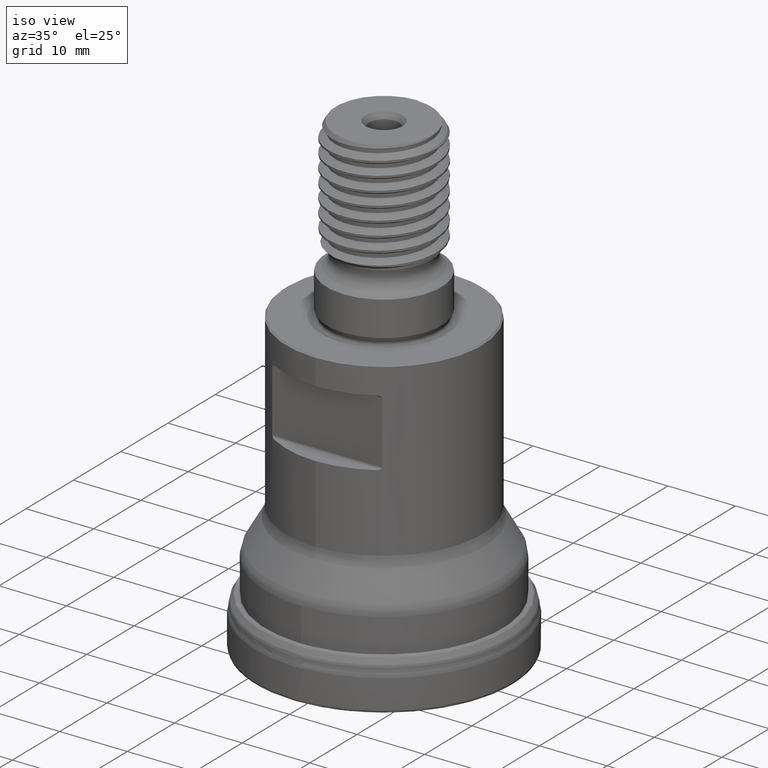
[diagram: clean part render]
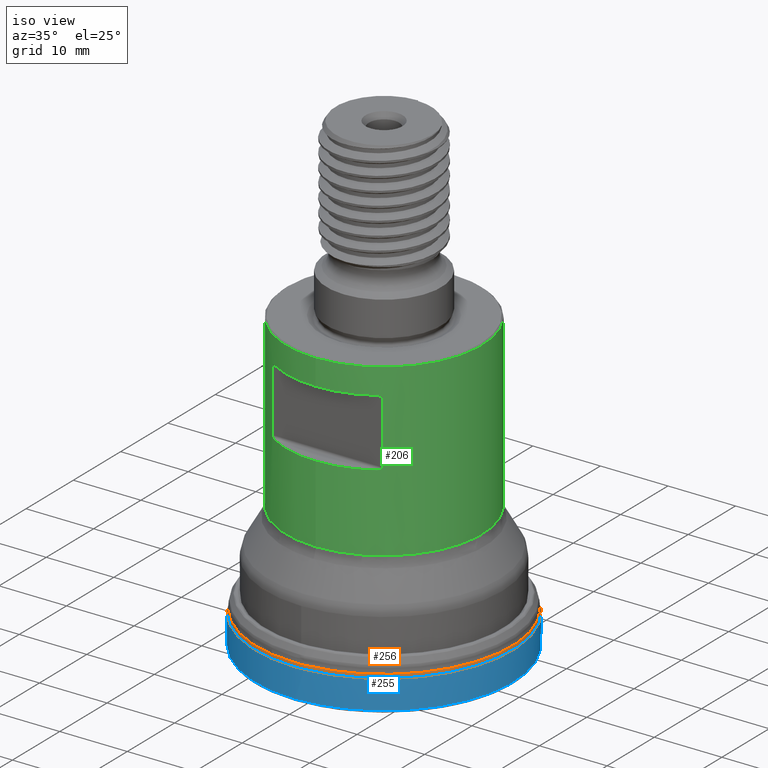
[diagram: same view with three faces highlighted in distinct colors, each labeled with its STEP entity id]
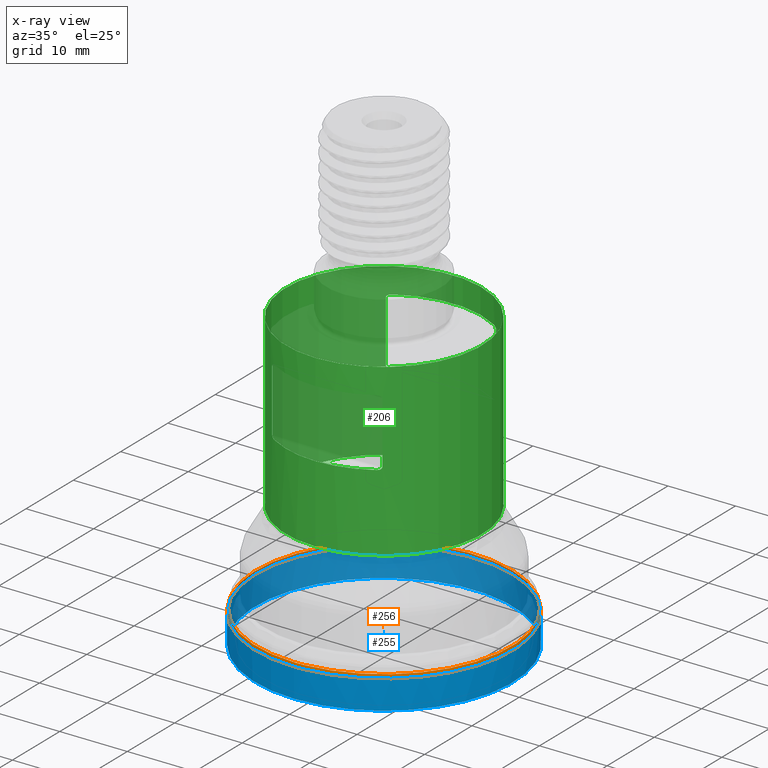
[diagram: x-ray of the same camera — body ghosted, the three highlighted faces saturated]
A machine part, iso view with three faces highlighted in distinct colors.
The next image is the same camera in x-ray (body ghosted, the three faces saturated) — at least one of them is partly hidden behind the body in this view.
Their STEP definitions:

[orange] entity #256 — the highlighted face is a SurfaceOfRevolution surface.
#112=SURFACE_OF_REVOLUTION('',#1006,#133);
#133=AXIS1_PLACEMENT('',#3627,#1317);
#256=ADVANCED_FACE('',(#394,#395),#112,.F.);
#394=FACE_BOUND('',#511,.T.);
#395=FACE_BOUND('',#512,.T.);
#511=EDGE_LOOP('',(#697));
#512=EDGE_LOOP('',(#698));
#697=ORIENTED_EDGE('',*,*,#887,.T.);
#698=ORIENTED_EDGE('',*,*,#888,.F.);
#794=VERTEX_POINT('',#3606);
#795=VERTEX_POINT('',#3621);
#887=EDGE_CURVE('',#794,#794,#945,.T.);
#888=EDGE_CURVE('',#795,#795,#946,.T.);
#945=CIRCLE('',#1104,19.0499998175295);
#946=CIRCLE('',#1105,18.9513466243375);
#1006=B_SPLINE_CURVE_WITH_KNOTS('',3,(#3622,#3623,#3624,#3625,#3626),
 .UNSPECIFIED.,.F.,.F.,(4,1,4),(0.,0.5,1.),.UNSPECIFIED.);
#1104=AXIS2_PLACEMENT_3D('',#3605,#1312,#1313);
#1105=AXIS2_PLACEMENT_3D('',#3620,#1315,#1316);
#1312=DIRECTION('',(0.,1.17145536458252E-15,1.));
#1313=DIRECTION('',(0.,-1.,1.18380080859356E-15));
#1315=DIRECTION('',(0.,1.17145536458252E-15,1.));
#1316=DIRECTION('',(0.,-1.,1.18996320603085E-15));
#1317=DIRECTION('',(0.,1.17145536458252E-15,1.));
#3605=CARTESIAN_POINT('',(0.,5.51126194071299E-15,4.704628197829));
#3606=CARTESIAN_POINT('',(0.,-19.0499998175295,4.70462819782902));
#3620=CARTESIAN_POINT('',(0.,6.11700145280095E-15,5.22171107644455));
#3621=CARTESIAN_POINT('',(0.,-18.9513466243375,5.22171107644457));
#3622=CARTESIAN_POINT('',(18.8659764767235,-1.79679372346596,5.22171119131758));
#3623=CARTESIAN_POINT('',(18.8944517323654,-1.78229448135056,5.14062336767116));
#3624=CARTESIAN_POINT('',(18.9439352439444,-1.76862433720116,4.96701630085083));
#3625=CARTESIAN_POINT('',(18.9629370148122,-1.79322453442999,4.78867733303717));
#3626=CARTESIAN_POINT('',(18.9632891112451,-1.81553274032853,4.704628197829));
#3627=CARTESIAN_POINT('',(0.,0.,0.));

[blue] entity #255 — the highlighted face is a SurfaceOfRevolution surface.
#111=SURFACE_OF_REVOLUTION('',#1005,#132);
#132=AXIS1_PLACEMENT('',#3619,#1314);
#255=ADVANCED_FACE('',(#392,#393),#111,.F.);
#392=FACE_BOUND('',#509,.T.);
#393=FACE_BOUND('',#510,.T.);
#509=EDGE_LOOP('',(#695));
#510=EDGE_LOOP('',(#696));
#695=ORIENTED_EDGE('',*,*,#886,.T.);
#696=ORIENTED_EDGE('',*,*,#887,.F.);
#793=VERTEX_POINT('',#3592);
#794=VERTEX_POINT('',#3606);
#886=EDGE_CURVE('',#793,#793,#944,.T.);
#887=EDGE_CURVE('',#794,#794,#945,.T.);
#944=CIRCLE('',#1103,19.0499999619467);
#945=CIRCLE('',#1104,19.0499998175295);
#1005=B_SPLINE_CURVE_WITH_KNOTS('',3,(#3607,#3608,#3609,#3610,#3611,#3612,
#3613,#3614,#3615,#3616,#3617,#3618),.UNSPECIFIED.,.F.,.F.,(4,1,1,1,1,1,
1,1,1,4),(0.,0.221418157861957,0.365983083750147,0.510548009638337,0.655112935526528,
0.799677861414718,0.871960324358813,0.90810155583086,0.944242787302908,
1.),.UNSPECIFIED.);
#1103=AXIS2_PLACEMENT_3D('',#3591,#1309,#1310);
#1104=AXIS2_PLACEMENT_3D('',#3605,#1312,#1313);
#1309=DIRECTION('',(0.,1.17145536458252E-15,1.));
#1310=DIRECTION('',(0.,-1.,1.17241809962287E-15));
#1312=DIRECTION('',(0.,1.17145536458252E-15,1.));
#1313=DIRECTION('',(0.,-1.,1.18380080859356E-15));
#1314=DIRECTION('',(0.,1.17145536458252E-15,1.));
#3591=CARTESIAN_POINT('',(0.,4.56857322947219E-16,0.389991233776142));
#3592=CARTESIAN_POINT('',(0.,-19.0499999619467,0.389991233776164));
#3605=CARTESIAN_POINT('',(0.,5.51126194071299E-15,4.704628197829));
#3606=CARTESIAN_POINT('',(0.,-19.0499998175295,4.70462819782902));
#3607=CARTESIAN_POINT('',(18.9632892823778,-1.8155328674677,4.70462793984546));
#3608=CARTESIAN_POINT('',(18.9647607216455,-1.90081503841667,4.38634500719714));
#3609=CARTESIAN_POINT('',(18.9634116688144,-2.04178510973329,3.86023664262779));
#3610=CARTESIAN_POINT('',(18.9491169293843,-2.23840300863843,3.12647451226594));
#3611=CARTESIAN_POINT('',(18.9282331894436,-2.4053713161252,2.50338136065094));
#3612=CARTESIAN_POINT('',(18.8997213493052,-2.57226956850283,1.88056631840897));
#3613=CARTESIAN_POINT('',(18.8724765765966,-2.71122892258865,1.36169080098696));
#3614=CARTESIAN_POINT('',(18.8522347613065,-2.80874868595928,0.998603279412066));
#3615=CARTESIAN_POINT('',(18.8403728344468,-2.86397847753352,0.791031930908569));
#3616=CARTESIAN_POINT('',(18.8293522138123,-2.9145375778137,0.607455353660356));
#3617=CARTESIAN_POINT('',(18.8239958413989,-2.9344856546909,0.472213763827121));
#3618=CARTESIAN_POINT('',(18.8208758810147,-2.94569679729784,0.389991233776145));
#3619=CARTESIAN_POINT('',(0.,0.,0.));

[green] entity #206 — the highlighted cylindrical surface (bore or boss wall) has radius 14.5 mm, axis along (0, 0, 1).
#206=ADVANCED_FACE('',(#326,#327,#328,#329),#273,.T.);
#273=CYLINDRICAL_SURFACE('',#1025,14.5);
#284=LINE('',#1574,#305);
#285=LINE('',#1622,#306);
#286=LINE('',#1668,#307);
#287=LINE('',#1716,#308);
#305=VECTOR('',#1125,1.);
#306=VECTOR('',#1128,1.);
#307=VECTOR('',#1131,1.);
#308=VECTOR('',#1134,1.);
#326=FACE_BOUND('',#428,.T.);
#327=FACE_BOUND('',#429,.T.);
#328=FACE_BOUND('',#430,.T.);
#329=FACE_BOUND('',#431,.T.);
#428=EDGE_LOOP('',(#545));
#429=EDGE_LOOP('',(#546,#547,#548,#549,#550,#551,#552,#553));
#430=EDGE_LOOP('',(#554,#555,#556,#557,#558,#559,#560,#561));
#431=EDGE_LOOP('',(#562));
#545=ORIENTED_EDGE('',*,*,#811,.T.);
#546=ORIENTED_EDGE('',*,*,#812,.T.);
#547=ORIENTED_EDGE('',*,*,#813,.T.);
#548=ORIENTED_EDGE('',*,*,#814,.T.);
#549=ORIENTED_EDGE('',*,*,#815,.T.);
#550=ORIENTED_EDGE('',*,*,#816,.T.);
#551=ORIENTED_EDGE('',*,*,#817,.T.);
#552=ORIENTED_EDGE('',*,*,#818,.T.);
#553=ORIENTED_EDGE('',*,*,#819,.T.);
#554=ORIENTED_EDGE('',*,*,#820,.T.);
#555=ORIENTED_EDGE('',*,*,#821,.T.);
#556=ORIENTED_EDGE('',*,*,#822,.T.);
#557=ORIENTED_EDGE('',*,*,#823,.T.);
#558=ORIENTED_EDGE('',*,*,#824,.T.);
#559=ORIENTED_EDGE('',*,*,#825,.T.);
#560=ORIENTED_EDGE('',*,*,#826,.T.);
#561=ORIENTED_EDGE('',*,*,#827,.T.);
#562=ORIENTED_EDGE('',*,*,#828,.T.);
#731=VERTEX_POINT('',#1573);
#732=VERTEX_POINT('',#1575);
#733=VERTEX_POINT('',#1576);
#734=VERTEX_POINT('',#1596);
#735=VERTEX_POINT('',#1598);
#736=VERTEX_POINT('',#1621);
#737=VERTEX_POINT('',#1623);
#738=VERTEX_POINT('',#1643);
#739=VERTEX_POINT('',#1645);
#740=VERTEX_POINT('',#1669);
#741=VERTEX_POINT('',#1670);
#742=VERTEX_POINT('',#1690);
#743=VERTEX_POINT('',#1692);
#744=VERTEX_POINT('',#1715);
#745=VERTEX_POINT('',#1717);
#746=VERTEX_POINT('',#1734);
#747=VERTEX_POINT('',#1736);
#748=VERTEX_POINT('',#1757);
#811=EDGE_CURVE('',#731,#731,#904,.T.);
#812=EDGE_CURVE('',#732,#733,#284,.T.);
#813=EDGE_CURVE('',#733,#734,#983,.T.);
#814=EDGE_CURVE('',#734,#735,#905,.T.);
#815=EDGE_CURVE('',#735,#736,#984,.T.);
#816=EDGE_CURVE('',#736,#737,#285,.T.);
#817=EDGE_CURVE('',#737,#738,#985,.T.);
#818=EDGE_CURVE('',#738,#739,#906,.T.);
#819=EDGE_CURVE('',#739,#732,#986,.T.);
#820=EDGE_CURVE('',#740,#741,#286,.T.);
#821=EDGE_CURVE('',#741,#742,#987,.T.);
#822=EDGE_CURVE('',#742,#743,#907,.T.);
#823=EDGE_CURVE('',#743,#744,#988,.T.);
#824=EDGE_CURVE('',#744,#745,#287,.T.);
#825=EDGE_CURVE('',#745,#746,#989,.T.);
#826=EDGE_CURVE('',#746,#747,#908,.T.);
#827=EDGE_CURVE('',#747,#740,#990,.T.);
#828=EDGE_CURVE('',#748,#748,#909,.T.);
#904=CIRCLE('',#1019,14.5);
#905=CIRCLE('',#1020,14.5);
#906=CIRCLE('',#1021,14.5);
#907=CIRCLE('',#1022,14.5);
#908=CIRCLE('',#1023,14.5);
#909=CIRCLE('',#1024,14.5);
#983=B_SPLINE_CURVE_WITH_KNOTS('',3,(#1577,#1578,#1579,#1580,#1581,#1582,
#1583,#1584,#1585,#1586,#1587,#1588,#1589,#1590,#1591,#1592,#1593,#1594,
#1595),.UNSPECIFIED.,.F.,.F.,(4,3,3,3,3,3,4),(0.,0.0742178285587751,0.157644329655402,
0.29286535483133,0.514948150457342,0.906958131603487,1.),.UNSPECIFIED.);
#984=B_SPLINE_CURVE_WITH_KNOTS('',3,(#1599,#1600,#1601,#1602,#1603,#1604,
#1605,#1606,#1607,#1608,#1609,#1610,#1611,#1612,#1613,#1614,#1615,#1616,
#1617,#1618,#1619,#1620),.UNSPECIFIED.,.F.,.F.,(4,3,3,3,3,3,3,4),(0.,0.0434556033441521,
0.448616497701335,0.640684900707791,0.801051445389477,0.902022694086625,
0.988047551290973,1.),.UNSPECIFIED.);
#985=B_SPLINE_CURVE_WITH_KNOTS('',3,(#1624,#1625,#1626,#1627,#1628,#1629,
#1630,#1631,#1632,#1633,#1634,#1635,#1636,#1637,#1638,#1639,#1640,#1641,
#1642),.UNSPECIFIED.,.F.,.F.,(4,3,3,3,3,3,4),(0.,0.074217828558773,0.157644329655401,
0.292865354831329,0.514948150457346,0.906958131603496,1.),.UNSPECIFIED.);
#986=B_SPLINE_CURVE_WITH_KNOTS('',3,(#1646,#1647,#1648,#1649,#1650,#1651,
#1652,#1653,#1654,#1655,#1656,#1657,#1658,#1659,#1660,#1661,#1662,#1663,
#1664,#1665,#1666,#1667),.UNSPECIFIED.,.F.,.F.,(4,3,3,3,3,3,3,4),(0.,0.0434556033441253,
0.448616497701322,0.640684900707777,0.801051445389463,0.902022694086611,
0.988047551290965,1.),.UNSPECIFIED.);
#987=B_SPLINE_CURVE_WITH_KNOTS('',3,(#1671,#1672,#1673,#1674,#1675,#1676,
#1677,#1678,#1679,#1680,#1681,#1682,#1683,#1684,#1685,#1686,#1687,#1688,
#1689),.UNSPECIFIED.,.F.,.F.,(4,3,3,3,3,3,4),(0.,0.074217828558774,0.1576443296554,
0.29286535483133,0.514948150457343,0.906958131603487,1.),.UNSPECIFIED.);
#988=B_SPLINE_CURVE_WITH_KNOTS('',3,(#1693,#1694,#1695,#1696,#1697,#1698,
#1699,#1700,#1701,#1702,#1703,#1704,#1705,#1706,#1707,#1708,#1709,#1710,
#1711,#1712,#1713,#1714),.UNSPECIFIED.,.F.,.F.,(4,3,3,3,3,3,3,4),(0.,0.043455603344152,
0.448616497701335,0.640684900707791,0.801051445389477,0.902022694086623,
0.988047551290973,1.),.UNSPECIFIED.);
#989=B_SPLINE_CURVE_WITH_KNOTS('',3,(#1718,#1719,#1720,#1721,#1722,#1723,
#1724,#1725,#1726,#1727,#1728,#1729,#1730,#1731,#1732,#1733),
 .UNSPECIFIED.,.F.,.F.,(4,3,3,3,3,4),(0.,0.102583735862563,0.203723937083867,
0.364923242271843,0.641759227713241,1.),.UNSPECIFIED.);
#990=B_SPLINE_CURVE_WITH_KNOTS('',3,(#1737,#1738,#1739,#1740,#1741,#1742,
#1743,#1744,#1745,#1746,#1747,#1748,#1749,#1750,#1751,#1752,#1753,#1754,
#1755),.UNSPECIFIED.,.F.,.F.,(4,3,3,3,3,3,4),(0.,0.444864729300737,0.609407154865654,
0.77554656197924,0.88000660205286,0.969095596706916,1.),.UNSPECIFIED.);
#1019=AXIS2_PLACEMENT_3D('',#1572,#1123,#1124);
#1020=AXIS2_PLACEMENT_3D('',#1597,#1126,#1127);
#1021=AXIS2_PLACEMENT_3D('',#1644,#1129,#1130);
#1022=AXIS2_PLACEMENT_3D('',#1691,#1132,#1133);
#1023=AXIS2_PLACEMENT_3D('',#1735,#1135,#1136);
#1024=AXIS2_PLACEMENT_3D('',#1756,#1137,#1138);
#1025=AXIS2_PLACEMENT_3D('',#1758,#1139,#1140);
#1123=DIRECTION('',(0.,1.17145536458252E-15,1.));
#1124=DIRECTION('',(0.,-1.,1.19636101791504E-15));
#1125=DIRECTION('',(1.17145536458252E-15,1.17145536458252E-15,1.));
#1126=DIRECTION('',(1.17145536458252E-15,1.17145536458252E-15,1.));
#1127=DIRECTION('',(0.,1.,-9.57088814332031E-16));
#1128=DIRECTION('',(-1.17145536458252E-15,-1.17145536458252E-15,-1.));
#1129=DIRECTION('',(-1.17145536458252E-15,-1.17145536458252E-15,-1.));
#1130=DIRECTION('',(0.,-1.,1.19636101791504E-15));
#1131=DIRECTION('',(1.17145536458252E-15,1.17145536458252E-15,1.));
#1132=DIRECTION('',(1.17145536458252E-15,1.17145536458252E-15,1.));
#1133=DIRECTION('',(0.,1.,-9.57088814332031E-16));
#1134=DIRECTION('',(-1.17145536458252E-15,-1.17145536458252E-15,-1.));
#1135=DIRECTION('',(-1.17145536458252E-15,-1.17145536458252E-15,-1.));
#1136=DIRECTION('',(0.,-1.,1.19636101791504E-15));
#1137=DIRECTION('',(-1.17145536458252E-15,-1.17145536458252E-15,-1.));
#1138=DIRECTION('',(0.,-1.,9.57088814332031E-16));
#1139=DIRECTION('',(0.,1.17145536458252E-15,1.));
#1140=DIRECTION('',(0.,-1.,1.17145536458252E-15));
#1572=CARTESIAN_POINT('',(0.,2.2257651927068E-14,19.));
#1573=CARTESIAN_POINT('',(0.,-14.5,19.));
#1574=CARTESIAN_POINT('',(8.13941029804988,12.,2.44999999999997));
#1575=CARTESIAN_POINT('',(8.1394102980499,12.,30.85));
#1576=CARTESIAN_POINT('',(8.13941029804991,12.,40.05));
#1577=CARTESIAN_POINT('',(8.13941029804991,12.,40.05));
#1578=CARTESIAN_POINT('',(8.13941029804991,12.,40.072761926607));
#1579=CARTESIAN_POINT('',(8.13644717399722,12.0020111473464,40.0957458142993));
#1580=CARTESIAN_POINT('',(8.13094272666901,12.0057390599509,40.1175152660629));
#1581=CARTESIAN_POINT('',(8.12473370927236,12.0099441459176,40.1420712108574));
#1582=CARTESIAN_POINT('',(8.11521283115816,12.0163853844229,40.1656009685708));
#1583=CARTESIAN_POINT('',(8.10357359360389,12.0242294976871,40.1871004361461));
#1584=CARTESIAN_POINT('',(8.08481372002567,12.0368724712911,40.2217528170973));
#1585=CARTESIAN_POINT('',(8.06019025602631,12.0533969675641,40.2521246156905));
#1586=CARTESIAN_POINT('',(8.03327292365512,12.0713100421649,40.2779537488578));
#1587=CARTESIAN_POINT('',(7.98921241932374,12.1006316365247,40.3202329991973));
#1588=CARTESIAN_POINT('',(7.9377537596222,12.1344988197545,40.3521308710705));
#1589=CARTESIAN_POINT('',(7.88470021137721,12.1688743348229,40.3764673443032));
#1590=CARTESIAN_POINT('',(7.79146837798988,12.229282967223,40.4192342108507));
#1591=CARTESIAN_POINT('',(7.68997559746779,12.29342903711,40.4405879810863));
#1592=CARTESIAN_POINT('',(7.58871335673044,12.355623399464,40.4475307753179));
#1593=CARTESIAN_POINT('',(7.56454450820136,12.3704676900125,40.449187852437));
#1594=CARTESIAN_POINT('',(7.54027998321402,12.3852729080489,40.45));
#1595=CARTESIAN_POINT('',(7.51598296964548,12.4,40.45));
#1596=CARTESIAN_POINT('',(7.51598296964548,12.4,40.45));
#1597=CARTESIAN_POINT('',(4.73853694973631E-14,4.73853694973631E-14,40.45));
#1598=CARTESIAN_POINT('',(-7.51598296964539,12.4,40.45));
#1599=CARTESIAN_POINT('',(-7.51598296964539,12.4,40.45));
#1600=CARTESIAN_POINT('',(-7.52735702976874,12.3931058675659,40.45));
#1601=CARTESIAN_POINT('',(-7.53872266574222,12.3861954343654,40.4498218218392));
#1602=CARTESIAN_POINT('',(-7.55007357119268,12.3792725581748,40.4494626054531));
#1603=CARTESIAN_POINT('',(-7.65506953109511,12.3152359018837,40.4461398512082));
#1604=CARTESIAN_POINT('',(-7.76056873589891,12.2489637151653,40.4278378023694));
#1605=CARTESIAN_POINT('',(-7.85835688142064,12.1859028030027,40.3878792539324));
#1606=CARTESIAN_POINT('',(-7.90506882074649,12.1557795453516,40.3687916510315));
#1607=CARTESIAN_POINT('',(-7.95057338698894,12.1260402451167,40.344415908192));
#1608=CARTESIAN_POINT('',(-7.99203515515349,12.0986517463224,40.3130384572747));
#1609=CARTESIAN_POINT('',(-8.02656173154824,12.0758444436478,40.2869094231277));
#1610=CARTESIAN_POINT('',(-8.05898187926331,12.0542019493076,40.2552992987112));
#1611=CARTESIAN_POINT('',(-8.08488342447345,12.0368043937199,40.2175975882249));
#1612=CARTESIAN_POINT('',(-8.10126088959277,12.0258039743439,40.1937589159211));
#1613=CARTESIAN_POINT('',(-8.11525976641503,12.0163510740289,40.1669570117813));
#1614=CARTESIAN_POINT('',(-8.1248551759291,12.0098596315768,40.1382637690482));
#1615=CARTESIAN_POINT('',(-8.13302909308918,12.0043298506149,40.1138212281842));
#1616=CARTESIAN_POINT('',(-8.13810537663531,12.0008850746367,40.0874291869248));
#1617=CARTESIAN_POINT('',(-8.1391831156986,12.0001540910576,40.0611017612126));
#1618=CARTESIAN_POINT('',(-8.13933446413745,12.0000514379876,40.0574045631463));
#1619=CARTESIAN_POINT('',(-8.13941029804982,12.,40.0537017181881));
#1620=CARTESIAN_POINT('',(-8.13941029804982,12.,40.05));
#1621=CARTESIAN_POINT('',(-8.13941029804982,12.,40.05));
#1622=CARTESIAN_POINT('',(-8.13941029804987,12.,2.44999999999999));
#1623=CARTESIAN_POINT('',(-8.13941029804983,12.,30.85));
#1624=CARTESIAN_POINT('',(-8.13941029804983,12.,30.85));
#1625=CARTESIAN_POINT('',(-8.13941029804983,12.,30.827238073393));
#1626=CARTESIAN_POINT('',(-8.13644717399715,12.0020111473464,30.8042541857006));
#1627=CARTESIAN_POINT('',(-8.13094272666893,12.0057390599509,30.782484733937));
#1628=CARTESIAN_POINT('',(-8.12473370927228,12.0099441459176,30.7579287891426));
#1629=CARTESIAN_POINT('',(-8.11521283115808,12.0163853844229,30.7343990314292));
#1630=CARTESIAN_POINT('',(-8.10357359360381,12.0242294976871,30.7128995638539));
#1631=CARTESIAN_POINT('',(-8.08481372002559,12.0368724712911,30.6782471829027));
#1632=CARTESIAN_POINT('',(-8.06019025602623,12.0533969675641,30.6478753843094));
#1633=CARTESIAN_POINT('',(-8.03327292365504,12.0713100421649,30.6220462511422));
#1634=CARTESIAN_POINT('',(-7.98921241932366,12.1006316365247,30.5797670008027));
#1635=CARTESIAN_POINT('',(-7.93775375962212,12.1344988197545,30.5478691289295));
#1636=CARTESIAN_POINT('',(-7.88470021137712,12.1688743348228,30.5235326556968));
#1637=CARTESIAN_POINT('',(-7.79146837798979,12.229282967223,30.4807657891493));
#1638=CARTESIAN_POINT('',(-7.6899755974677,12.29342903711,30.4594120189137));
#1639=CARTESIAN_POINT('',(-7.58871335673035,12.355623399464,30.4524692246821));
#1640=CARTESIAN_POINT('',(-7.56454450820128,12.3704676900125,30.450812147563));
#1641=CARTESIAN_POINT('',(-7.54027998321394,12.3852729080489,30.4499999999999));
#1642=CARTESIAN_POINT('',(-7.5159829696454,12.4,30.4499999999999));
#1643=CARTESIAN_POINT('',(-7.5159829696454,12.4,30.4499999999999));
#1644=CARTESIAN_POINT('',(3.56708158515379E-14,3.56708158515379E-14,30.45));
#1645=CARTESIAN_POINT('',(7.51598296964547,12.4,30.45));
#1646=CARTESIAN_POINT('',(7.51598296964547,12.4,30.45));
#1647=CARTESIAN_POINT('',(7.52735702976882,12.3931058675659,30.45));
#1648=CARTESIAN_POINT('',(7.53872266574229,12.3861954343654,30.4501781781608));
#1649=CARTESIAN_POINT('',(7.55007357119274,12.3792725581748,30.4505373945469));
#1650=CARTESIAN_POINT('',(7.65506953109518,12.3152359018837,30.4538601487918));
#1651=CARTESIAN_POINT('',(7.76056873589898,12.2489637151653,30.4721621976306));
#1652=CARTESIAN_POINT('',(7.85835688142072,12.1859028030027,30.5121207460675));
#1653=CARTESIAN_POINT('',(7.90506882074657,12.1557795453516,30.5312083489685));
#1654=CARTESIAN_POINT('',(7.95057338698902,12.1260402451167,30.555584091808));
#1655=CARTESIAN_POINT('',(7.99203515515357,12.0986517463224,30.5869615427253));
#1656=CARTESIAN_POINT('',(8.02656173154831,12.0758444436478,30.6130905768723));
#1657=CARTESIAN_POINT('',(8.05898187926339,12.0542019493076,30.6447007012887));
#1658=CARTESIAN_POINT('',(8.08488342447353,12.0368043937199,30.682402411775));
#1659=CARTESIAN_POINT('',(8.10126088959285,12.0258039743439,30.7062410840789));
#1660=CARTESIAN_POINT('',(8.11525976641511,12.0163510740289,30.7330429882186));
#1661=CARTESIAN_POINT('',(8.12485517592918,12.0098596315768,30.7617362309518));
#1662=CARTESIAN_POINT('',(8.13302909308926,12.0043298506149,30.7861787718158));
#1663=CARTESIAN_POINT('',(8.1381053766354,12.0008850746367,30.8125708130752));
#1664=CARTESIAN_POINT('',(8.13918311569868,12.0001540910576,30.8388982387874));
#1665=CARTESIAN_POINT('',(8.13933446413754,12.0000514379876,30.8425954368537));
#1666=CARTESIAN_POINT('',(8.1394102980499,12.,30.8462982818119));
#1667=CARTESIAN_POINT('',(8.1394102980499,12.,30.85));
#1668=CARTESIAN_POINT('',(-8.13941029804987,-12.,2.45000000000001));
#1669=CARTESIAN_POINT('',(-8.13941029804983,-12.,30.85));
#1670=CARTESIAN_POINT('',(-8.13941029804982,-12.,40.05));
#1671=CARTESIAN_POINT('',(-8.13941029804982,-12.,40.05));
#1672=CARTESIAN_POINT('',(-8.13941029804982,-12.,40.072761926607));
#1673=CARTESIAN_POINT('',(-8.13644717399713,-12.0020111473463,40.0957458142994));
#1674=CARTESIAN_POINT('',(-8.13094272666892,-12.0057390599508,40.117515266063));
#1675=CARTESIAN_POINT('',(-8.12473370927226,-12.0099441459175,40.1420712108574));
#1676=CARTESIAN_POINT('',(-8.11521283115806,-12.0163853844228,40.1656009685708));
#1677=CARTESIAN_POINT('',(-8.10357359360379,-12.024229497687,40.1871004361461));
#1678=CARTESIAN_POINT('',(-8.08481372002557,-12.036872471291,40.2217528170973));
#1679=CARTESIAN_POINT('',(-8.06019025602621,-12.053396967564,40.2521246156906));
#1680=CARTESIAN_POINT('',(-8.03327292365502,-12.0713100421648,40.2779537488579));
#1681=CARTESIAN_POINT('',(-7.98921241932365,-12.1006316365246,40.3202329991973));
#1682=CARTESIAN_POINT('',(-7.9377537596221,-12.1344988197544,40.3521308710706));
#1683=CARTESIAN_POINT('',(-7.88470021137711,-12.1688743348228,40.3764673443032));
#1684=CARTESIAN_POINT('',(-7.79146837798978,-12.2292829672229,40.4192342108507));
#1685=CARTESIAN_POINT('',(-7.68997559746769,-12.2934290371099,40.4405879810863));
#1686=CARTESIAN_POINT('',(-7.58871335673034,-12.3556233994639,40.4475307753179));
#1687=CARTESIAN_POINT('',(-7.56454450820127,-12.3704676900124,40.449187852437));
#1688=CARTESIAN_POINT('',(-7.54027998321393,-12.3852729080488,40.45));
#1689=CARTESIAN_POINT('',(-7.51598296964539,-12.4,40.45));
#1690=CARTESIAN_POINT('',(-7.51598296964539,-12.4,40.45));
#1691=CARTESIAN_POINT('',(4.73853694973631E-14,4.73853694973631E-14,40.45));
#1692=CARTESIAN_POINT('',(7.51598296964548,-12.4,40.45));
#1693=CARTESIAN_POINT('',(7.51598296964548,-12.4,40.45));
#1694=CARTESIAN_POINT('',(7.52735702976883,-12.3931058675659,40.45));
#1695=CARTESIAN_POINT('',(7.53872266574231,-12.3861954343653,40.4498218218392));
#1696=CARTESIAN_POINT('',(7.55007357119277,-12.3792725581747,40.4494626054531));
#1697=CARTESIAN_POINT('',(7.6550695310952,-12.3152359018836,40.4461398512082));
#1698=CARTESIAN_POINT('',(7.76056873589901,-12.2489637151652,40.4278378023694));
#1699=CARTESIAN_POINT('',(7.85835688142074,-12.1859028030026,40.3878792539324));
#1700=CARTESIAN_POINT('',(7.90506882074658,-12.1557795453516,40.3687916510315));
#1701=CARTESIAN_POINT('',(7.95057338698904,-12.1260402451166,40.344415908192));
#1702=CARTESIAN_POINT('',(7.99203515515359,-12.0986517463224,40.3130384572747));
#1703=CARTESIAN_POINT('',(8.02656173154833,-12.0758444436477,40.2869094231277));
#1704=CARTESIAN_POINT('',(8.0589818792634,-12.0542019493075,40.2552992987112));
#1705=CARTESIAN_POINT('',(8.08488342447355,-12.0368043937198,40.2175975882249));
#1706=CARTESIAN_POINT('',(8.10126088959287,-12.0258039743438,40.1937589159211));
#1707=CARTESIAN_POINT('',(8.11525976641512,-12.0163510740288,40.1669570117813));
#1708=CARTESIAN_POINT('',(8.1248551759292,-12.0098596315767,40.1382637690482));
#1709=CARTESIAN_POINT('',(8.13302909308927,-12.0043298506148,40.1138212281842));
#1710=CARTESIAN_POINT('',(8.13810537663541,-12.0008850746366,40.0874291869248));
#1711=CARTESIAN_POINT('',(8.13918311569869,-12.0001540910575,40.0611017612126));
#1712=CARTESIAN_POINT('',(8.13933446413755,-12.0000514379875,40.0574045631463));
#1713=CARTESIAN_POINT('',(8.13941029804991,-12.,40.0537017181881));
#1714=CARTESIAN_POINT('',(8.13941029804991,-12.,40.05));
#1715=CARTESIAN_POINT('',(8.13941029804991,-12.,40.05));
#1716=CARTESIAN_POINT('',(8.13941029804988,-12.,2.45));
#1717=CARTESIAN_POINT('',(8.1394102980499,-12.,30.85));
#1718=CARTESIAN_POINT('',(8.1394102980499,-12.,30.85));
#1719=CARTESIAN_POINT('',(8.1394102980499,-12.,30.8187150003752));
#1720=CARTESIAN_POINT('',(8.13367610909971,-12.0038935561958,30.7869349939206));
#1721=CARTESIAN_POINT('',(8.12361423121539,-12.0106990563578,30.7581045415739));
#1722=CARTESIAN_POINT('',(8.11363413444439,-12.0174492426523,30.7295084179001));
#1723=CARTESIAN_POINT('',(8.09930708379325,-12.0271204817592,30.702872640337));
#1724=CARTESIAN_POINT('',(8.0826544398338,-12.0383012591576,30.6791959576795));
#1725=CARTESIAN_POINT('',(8.05622421873656,-12.0560468147221,30.6416175431639));
#1726=CARTESIAN_POINT('',(8.02335684119292,-12.0779757177134,30.610197123009));
#1727=CARTESIAN_POINT('',(7.98842060825749,-12.1010386407765,30.5842518002106));
#1728=CARTESIAN_POINT('',(7.92864961638412,-12.1404960656664,30.5398629938674));
#1729=CARTESIAN_POINT('',(7.86093663143181,-12.1845123353712,30.5095235381676));
#1730=CARTESIAN_POINT('',(7.79208409837756,-12.2283860506533,30.4886848295606));
#1731=CARTESIAN_POINT('',(7.70291157054343,-12.2852079266776,30.4616961300771));
#1732=CARTESIAN_POINT('',(7.60930596947211,-12.3434343485989,30.45));
#1733=CARTESIAN_POINT('',(7.51598296964547,-12.4,30.45));
#1734=CARTESIAN_POINT('',(7.51598296964547,-12.4,30.45));
#1735=CARTESIAN_POINT('',(3.56708158515379E-14,3.56708158515379E-14,30.45));
#1736=CARTESIAN_POINT('',(-7.5159829696454,-12.4,30.45));
#1737=CARTESIAN_POINT('',(-7.5159829696454,-12.4,30.45));
#1738=CARTESIAN_POINT('',(-7.63132791214499,-12.3300862400434,30.45));
#1739=CARTESIAN_POINT('',(-7.74781160859115,-12.2571503756533,30.4675657969923));
#1740=CARTESIAN_POINT('',(-7.8551915638228,-12.1879434481641,30.5108362949494));
#1741=CARTESIAN_POINT('',(-7.8953707927741,-12.1620477306756,30.5270271681948));
#1742=CARTESIAN_POINT('',(-7.93459349904627,-12.1364801476378,30.5470782380953));
#1743=CARTESIAN_POINT('',(-7.97123768788142,-12.1123643325033,30.5720328746349));
#1744=CARTESIAN_POINT('',(-8.00807970526934,-12.0881183249165,30.5971222321163));
#1745=CARTESIAN_POINT('',(-8.0430131760895,-12.0648723938928,30.6276684361029));
#1746=CARTESIAN_POINT('',(-8.07187218348568,-12.0455335894044,30.6646528560795));
#1747=CARTESIAN_POINT('',(-8.09008422017937,-12.0333294615174,30.6879925920747));
#1748=CARTESIAN_POINT('',(-8.10612699866334,-12.0225166755528,30.7143794790308));
#1749=CARTESIAN_POINT('',(-8.11790733612336,-12.0145570239653,30.7430714620622));
#1750=CARTESIAN_POINT('',(-8.12794603627542,-12.0077741490372,30.7675215438529));
#1751=CARTESIAN_POINT('',(-8.13501808404771,-12.002978497456,30.7942302092602));
#1752=CARTESIAN_POINT('',(-8.13788973012605,-12.0010312365358,30.8212958926308));
#1753=CARTESIAN_POINT('',(-8.13889871139546,-12.00034704714,30.8308056883435));
#1754=CARTESIAN_POINT('',(-8.13941029804983,-12.,30.8404123844033));
#1755=CARTESIAN_POINT('',(-8.13941029804983,-12.,30.85));
#1756=CARTESIAN_POINT('',(5.18368998827767E-14,5.18368998827767E-14,44.25));
#1757=CARTESIAN_POINT('',(5.18368998827767E-14,-14.5,44.25));
#1758=CARTESIAN_POINT('',(0.,0.,0.));